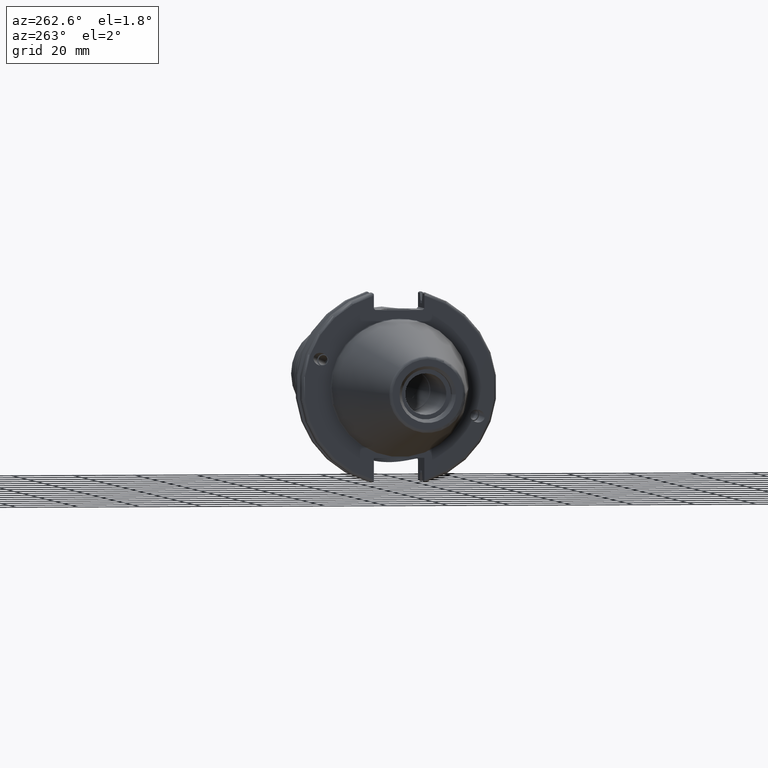
[diagram: clean part render]
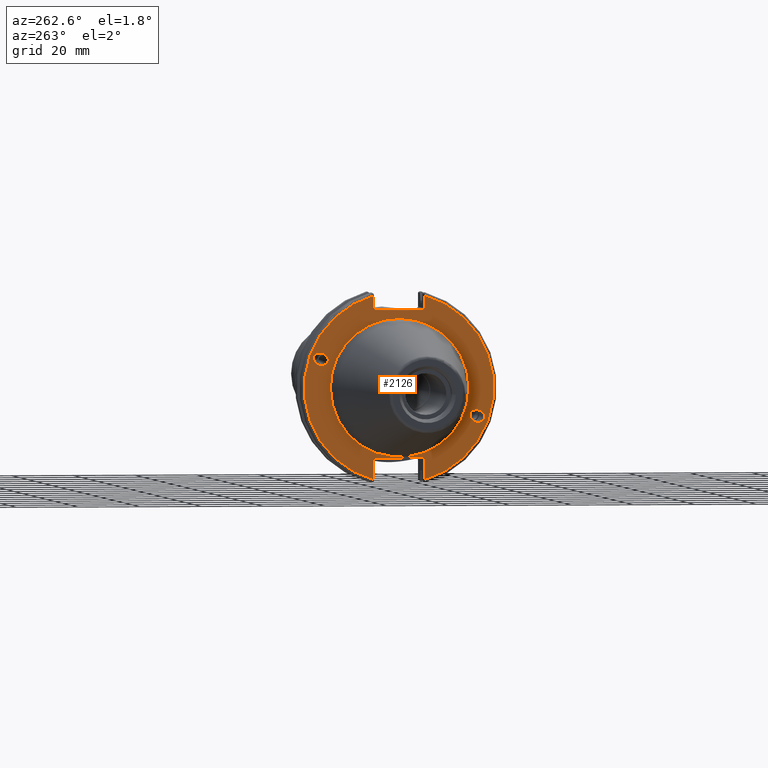
[diagram: same view with one face highlighted and labeled with its STEP entity id]
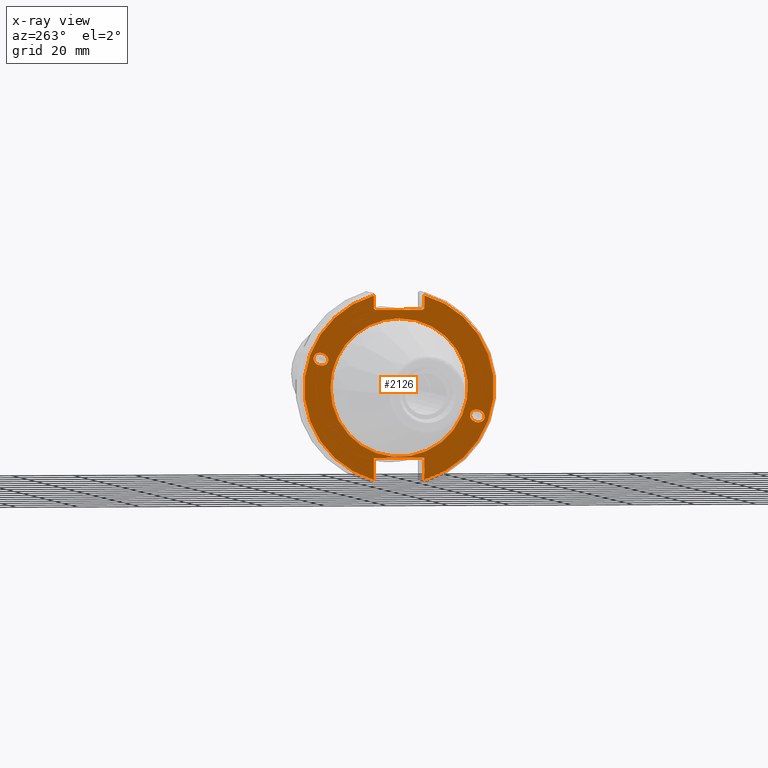
[diagram: x-ray of the same camera — body ghosted, the highlighted face saturated]
A machine part, auxiliary view. The second image highlights one B-rep face of the part: STEP entity #2126.
The next image is the same camera in x-ray: the body ghosted, the highlighted face saturated — about 0% of this face is hidden behind the body in this view.
In plain terms, the highlighted planar face has unit normal (-1, 0, 0).
Its self-contained STEP definition (entity closure, byte-faithful):
#39=ELLIPSE('',#2348,2.44154917752291,2.);
#48=ELLIPSE('',#2396,2.44154917752291,2.);
#62=PLANE('',#2409);
#112=FACE_BOUND('',#361,.T.);
#113=FACE_BOUND('',#362,.T.);
#114=FACE_BOUND('',#363,.T.);
#245=FACE_OUTER_BOUND('',#360,.T.);
#360=EDGE_LOOP('',(#1786,#1787,#1788,#1789,#1790,#1791,#1792,#1793,#1794,
#1795));
#361=EDGE_LOOP('',(#1796));
#362=EDGE_LOOP('',(#1797));
#363=EDGE_LOOP('',(#1798,#1799));
#465=LINE('',#3904,#564);
#466=LINE('',#3908,#565);
#467=LINE('',#3910,#566);
#468=LINE('',#3912,#567);
#469=LINE('',#3914,#568);
#470=LINE('',#3916,#569);
#471=LINE('',#3920,#570);
#472=LINE('',#3921,#571);
#564=VECTOR('',#2986,10.);
#565=VECTOR('',#2989,10.);
#566=VECTOR('',#2990,10.);
#567=VECTOR('',#2991,10.);
#568=VECTOR('',#2992,10.);
#569=VECTOR('',#2993,10.);
#570=VECTOR('',#2996,10.);
#571=VECTOR('',#2997,10.);
#742=CIRCLE('',#2405,22.3);
#743=CIRCLE('',#2406,22.3);
#746=CIRCLE('',#2410,30.75);
#747=CIRCLE('',#2411,30.75);
#907=VERTEX_POINT('',#3683);
#952=VERTEX_POINT('',#3876);
#958=VERTEX_POINT('',#3893);
#959=VERTEX_POINT('',#3895);
#961=VERTEX_POINT('',#3902);
#962=VERTEX_POINT('',#3903);
#963=VERTEX_POINT('',#3905);
#964=VERTEX_POINT('',#3907);
#965=VERTEX_POINT('',#3909);
#966=VERTEX_POINT('',#3911);
#967=VERTEX_POINT('',#3913);
#968=VERTEX_POINT('',#3915);
#969=VERTEX_POINT('',#3917);
#970=VERTEX_POINT('',#3919);
#1187=EDGE_CURVE('',#907,#907,#39,.T.);
#1248=EDGE_CURVE('',#952,#952,#48,.T.);
#1256=EDGE_CURVE('',#958,#959,#742,.T.);
#1257=EDGE_CURVE('',#959,#958,#743,.T.);
#1260=EDGE_CURVE('',#961,#962,#465,.T.);
#1261=EDGE_CURVE('',#963,#962,#746,.T.);
#1262=EDGE_CURVE('',#963,#964,#466,.T.);
#1263=EDGE_CURVE('',#965,#964,#467,.T.);
#1264=EDGE_CURVE('',#965,#966,#468,.T.);
#1265=EDGE_CURVE('',#967,#966,#469,.T.);
#1266=EDGE_CURVE('',#967,#968,#470,.T.);
#1267=EDGE_CURVE('',#969,#968,#747,.T.);
#1268=EDGE_CURVE('',#969,#970,#471,.T.);
#1269=EDGE_CURVE('',#970,#961,#472,.T.);
#1786=ORIENTED_EDGE('',*,*,#1260,.T.);
#1787=ORIENTED_EDGE('',*,*,#1261,.F.);
#1788=ORIENTED_EDGE('',*,*,#1262,.T.);
#1789=ORIENTED_EDGE('',*,*,#1263,.F.);
#1790=ORIENTED_EDGE('',*,*,#1264,.T.);
#1791=ORIENTED_EDGE('',*,*,#1265,.F.);
#1792=ORIENTED_EDGE('',*,*,#1266,.T.);
#1793=ORIENTED_EDGE('',*,*,#1267,.F.);
#1794=ORIENTED_EDGE('',*,*,#1268,.T.);
#1795=ORIENTED_EDGE('',*,*,#1269,.T.);
#1796=ORIENTED_EDGE('',*,*,#1187,.T.);
#1797=ORIENTED_EDGE('',*,*,#1248,.T.);
#1798=ORIENTED_EDGE('',*,*,#1257,.F.);
#1799=ORIENTED_EDGE('',*,*,#1256,.F.);
#2126=ADVANCED_FACE('',(#245,#112,#113,#114),#62,.T.);
#2348=AXIS2_PLACEMENT_3D('',#3685,#2843,#2844);
#2396=AXIS2_PLACEMENT_3D('',#3878,#2956,#2957);
#2405=AXIS2_PLACEMENT_3D('',#3896,#2976,#2977);
#2406=AXIS2_PLACEMENT_3D('',#3897,#2978,#2979);
#2409=AXIS2_PLACEMENT_3D('',#3901,#2984,#2985);
#2410=AXIS2_PLACEMENT_3D('',#3906,#2987,#2988);
#2411=AXIS2_PLACEMENT_3D('',#3918,#2994,#2995);
#2843=DIRECTION('center_axis',(1.,0.,0.));
#2844=DIRECTION('ref_axis',(0.,-0.939692620785912,-0.34202014332566));
#2956=DIRECTION('center_axis',(1.,0.,0.));
#2957=DIRECTION('ref_axis',(0.,0.939692620785912,0.34202014332566));
#2976=DIRECTION('center_axis',(-1.,0.,0.));
#2977=DIRECTION('ref_axis',(0.,-1.,1.83697019872103E-16));
#2978=DIRECTION('center_axis',(-1.,0.,0.));
#2979=DIRECTION('ref_axis',(0.,-1.,1.83697019872103E-16));
#2984=DIRECTION('center_axis',(-1.,0.,0.));
#2985=DIRECTION('ref_axis',(0.,0.,1.));
#2986=DIRECTION('',(0.,0.,-1.));
#2987=DIRECTION('center_axis',(1.,0.,0.));
#2988=DIRECTION('ref_axis',(0.,-1.,1.60812264967664E-16));
#2989=DIRECTION('',(0.,0.,-1.));
#2990=DIRECTION('',(0.,-0.70710678118655,0.707106781186545));
#2991=DIRECTION('',(0.,1.,0.));
#2992=DIRECTION('',(0.,-0.707106781186549,-0.707106781186546));
#2993=DIRECTION('',(0.,0.,1.));
#2994=DIRECTION('center_axis',(1.,0.,0.));
#2995=DIRECTION('ref_axis',(0.,1.,1.60812264967664E-16));
#2996=DIRECTION('',(0.,0.,1.));
#2997=DIRECTION('',(0.,-1.,0.));
#3683=CARTESIAN_POINT('',(3.175,-23.0773950158153,-8.39948487016003));
#3685=CARTESIAN_POINT('Origin',(3.175,-25.3717007612195,-9.23454386979306));
#3876=CARTESIAN_POINT('',(3.175,23.0773950158153,8.39948487016003));
#3878=CARTESIAN_POINT('Origin',(3.175,25.3717007612195,9.23454386979306));
#3893=CARTESIAN_POINT('',(3.175,-2.7309623620986E-15,22.3));
#3895=CARTESIAN_POINT('',(3.175,22.3,-6.8274059052465E-15));
#3896=CARTESIAN_POINT('Origin',(3.175,0.,0.));
#3897=CARTESIAN_POINT('Origin',(3.175,0.,0.));
#3901=CARTESIAN_POINT('Origin',(3.175,31.75,0.));
#3902=CARTESIAN_POINT('',(3.175,-8.19,-22.6));
#3903=CARTESIAN_POINT('',(3.175,-8.19,-29.6392712461019));
#3904=CARTESIAN_POINT('',(3.175,-8.19,-11.3));
#3905=CARTESIAN_POINT('',(3.175,-8.18999999999999,29.6392712461019));
#3906=CARTESIAN_POINT('Origin',(3.175,0.,0.));
#3907=CARTESIAN_POINT('',(3.175,-8.18999999999999,25.5));
#3908=CARTESIAN_POINT('',(3.175,-8.18999999999999,12.5));
#3909=CARTESIAN_POINT('',(3.175,-7.68999999999999,25.));
#3910=CARTESIAN_POINT('',(3.175,8.29500000000007,9.01500000000004));
#3911=CARTESIAN_POINT('',(3.175,7.69,25.));
#3912=CARTESIAN_POINT('',(3.175,15.875,25.));
#3913=CARTESIAN_POINT('',(3.175,8.19,25.5));
#3914=CARTESIAN_POINT('',(3.175,7.58000000000002,24.89));
#3915=CARTESIAN_POINT('',(3.175,8.19,29.6392712461019));
#3916=CARTESIAN_POINT('',(3.175,8.19,12.5));
#3917=CARTESIAN_POINT('',(3.175,8.18999999999999,-29.6392712461019));
#3918=CARTESIAN_POINT('Origin',(3.175,0.,0.));
#3919=CARTESIAN_POINT('',(3.175,8.19,-22.6));
#3920=CARTESIAN_POINT('',(3.175,8.19,-11.3));
#3921=CARTESIAN_POINT('',(3.175,15.875,-22.6));